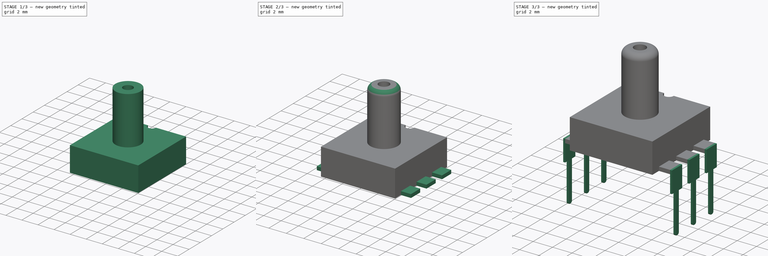
[diagram: build sequence overview — one tinted view per stage of 3, left to right]
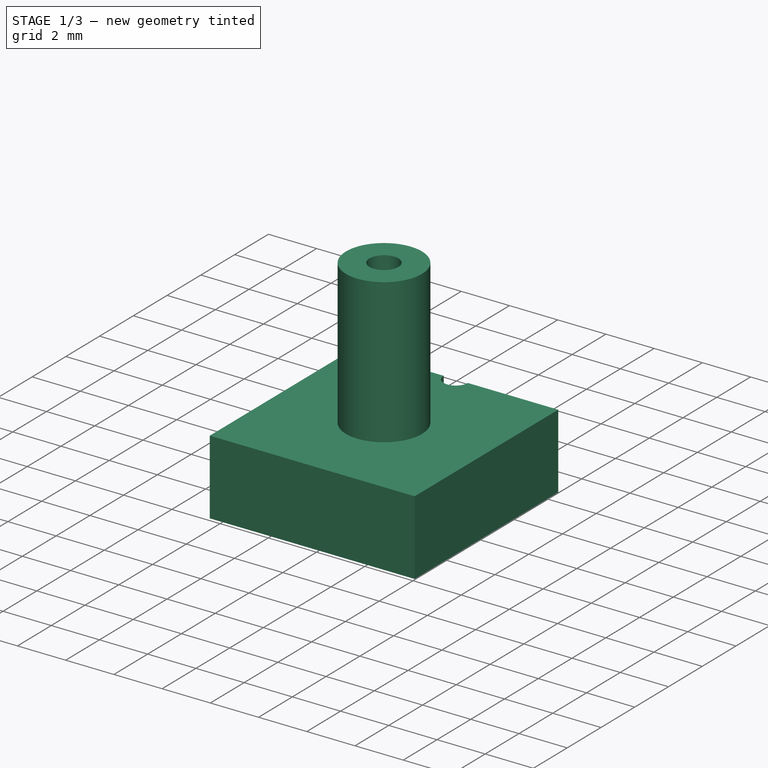
[diagram: stage 1 of 3 — iso view after this stage's code; geometry added in this stage tinted green]
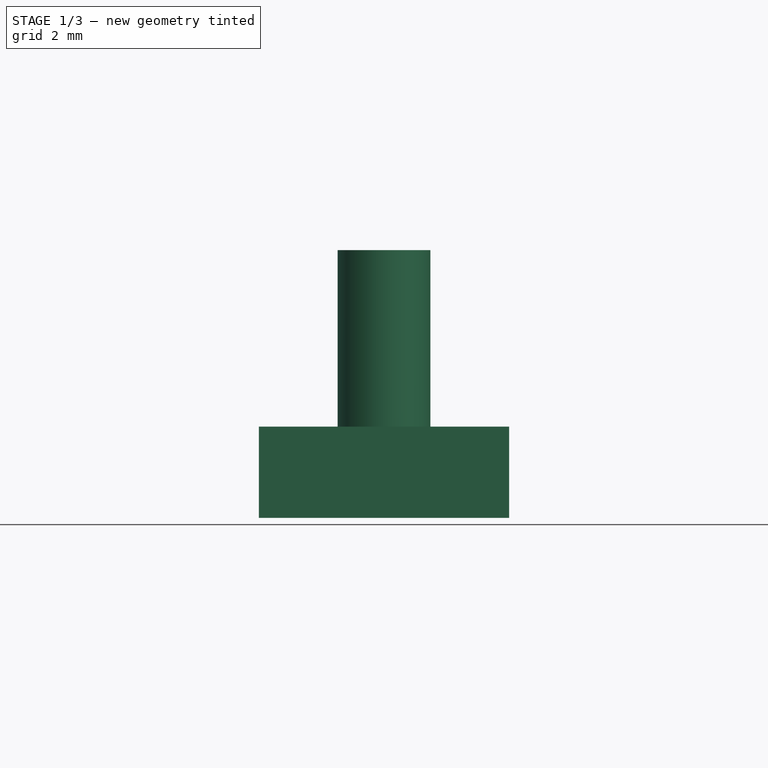
[diagram: stage 1 of 3 — front view after this stage's code; geometry added in this stage tinted green]
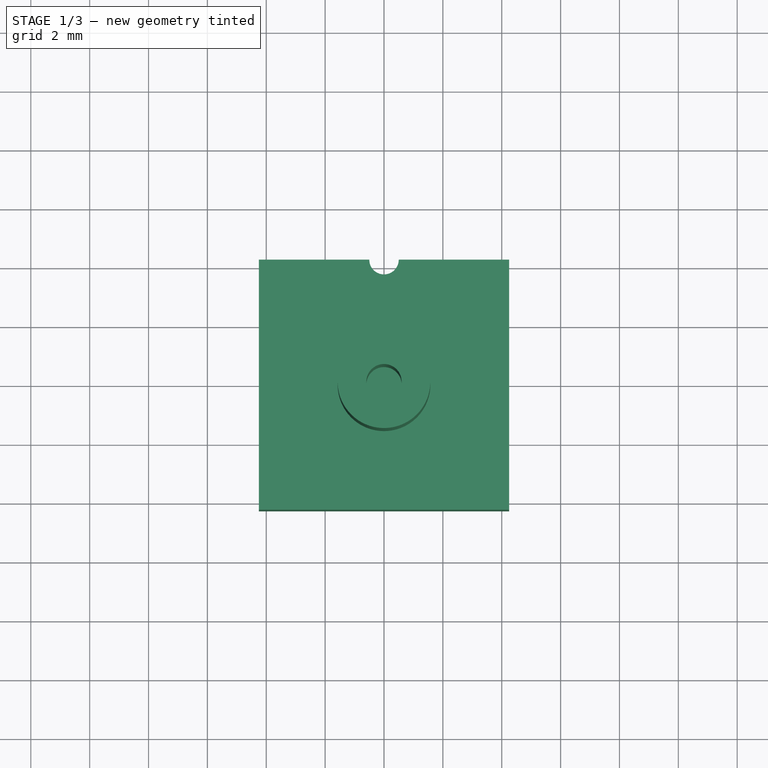
[diagram: stage 1 of 3 — top view after this stage's code; geometry added in this stage tinted green]
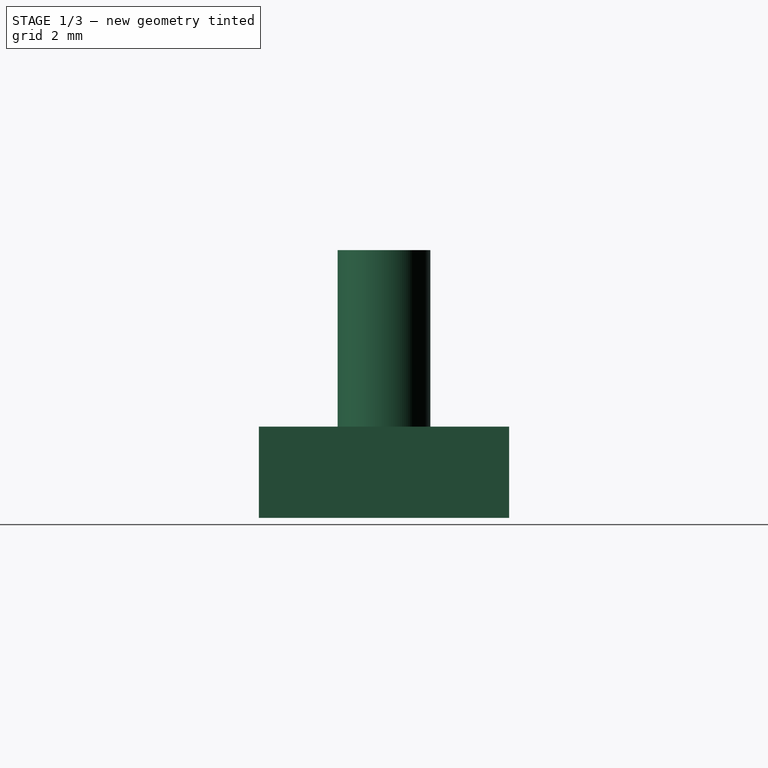
[diagram: stage 1 of 3 — right view after this stage's code; geometry added in this stage tinted green]
FCSTD DOCUMENT  (FreeCAD 0.20R29177 (Git))
Label: XGZP6857D
License: All rights reserved
LicenseURL: http://en.wikipedia.org/wiki/All_rights_reserved
objects: Sketcher::SketchObject×4, PartDesign::Pad×4, PartDesign::Body×2, PartDesign::Mirrored×1, PartDesign::Fillet×1, Part::Feature×1
note: 18 computed .brp shape members not serialized (recipe doc carries the construction recipe); baked Part::Feature solids carry a one-line shape summary decoded from their .brp

FEATURE [Sketcher::SketchObject] Sketch
  FullyConstrained = true
  MapMode = 5
  Support = -> [XY_Plane]
  sketch-geometry (6):
    g0: LineSegment StartX=-4.25 StartY=4.25 StartZ=0 EndX=-0.5 EndY=4.25 EndZ=0
    g1: LineSegment StartX=4.25 StartY=4.25 StartZ=0 EndX=4.25 EndY=-4.25 EndZ=0
    g2: LineSegment StartX=4.25 StartY=-4.25 StartZ=0 EndX=-4.25 EndY=-4.25 EndZ=0
    g3: LineSegment StartX=-4.25 StartY=-4.25 StartZ=0 EndX=-4.25 EndY=4.25 EndZ=0
    g4: ArcOfCircle CenterX=0 CenterY=4.25 CenterZ=0 NormalX=0 NormalY=0 NormalZ=1 AngleXU=0 Radius=0.5 StartAngle=3.14159 EndAngle=6.28319
    g5: LineSegment StartX=0.5 StartY=4.25 StartZ=0 EndX=4.25 EndY=4.25 EndZ=0
  constraints (18):
    c: Coincident(g5,g1)
    c: Coincident(g1,g2)
    c: Coincident(g2,g3)
    c: Coincident(g3,g0)
    c: Horizontal(g0)
    c: Horizontal(g2)
    c: Vertical(g1)
    c: Vertical(g3)
    c: Symmetric(g1,g0,g-1)
    c: DistanceX(g0,g5) = 8.5
    c: PointOnObject(g4,g0)
    c: PointOnObject(g4,g-2)
    c: Diameter(g4) = 1
    c: Coincident(g0,g4)
    c: Coincident(g5,g4)
    c: Horizontal(g5)
    c: Horizontal(g0,g4)
    c: Equal(g2,g1)
FEATURE [PartDesign::Pad] Pad
  Direction = (0,0,1)
  Length = 3.1
  Length2 = 10
  Profile = -> Sketch
  ReferenceAxis = -> Sketch [N_Axis]
  Type = 0
FEATURE [Sketcher::SketchObject] Sketch001
  FullyConstrained = true
  MapMode = 5
  Placement = pos=(0,0,3.1) rot=(0,0,1;0rad)
  Support = -> [Pad]
  sketch-geometry (2):
    g0: Circle CenterX=0 CenterY=0 CenterZ=0 NormalX=0 NormalY=0 NormalZ=1 AngleXU=0 Radius=1.575
    g1: Circle CenterX=0 CenterY=0 CenterZ=0 NormalX=0 NormalY=0 NormalZ=1 AngleXU=0 Radius=0.6
  constraints (4):
    c: Coincident(g0,g-1)
    c: Diameter(g0) = 3.15
    c: Coincident(g1,g0)
    c: Diameter(g1) = 1.2
FEATURE [PartDesign::Pad] Pad001
  BaseFeature = -> Pad
  Direction = (0,0,1)
  Length = 6
  Length2 = 10
  Profile = -> Sketch001
  ReferenceAxis = -> Sketch001 [N_Axis]
  Type = 0
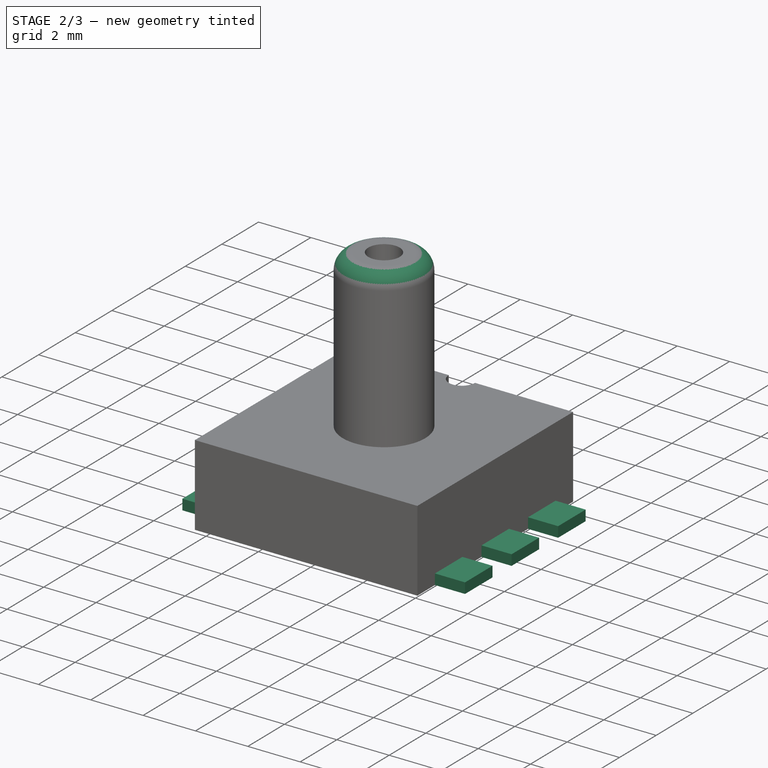
[diagram: stage 2 of 3 — iso view after this stage's code; geometry added in this stage tinted green]
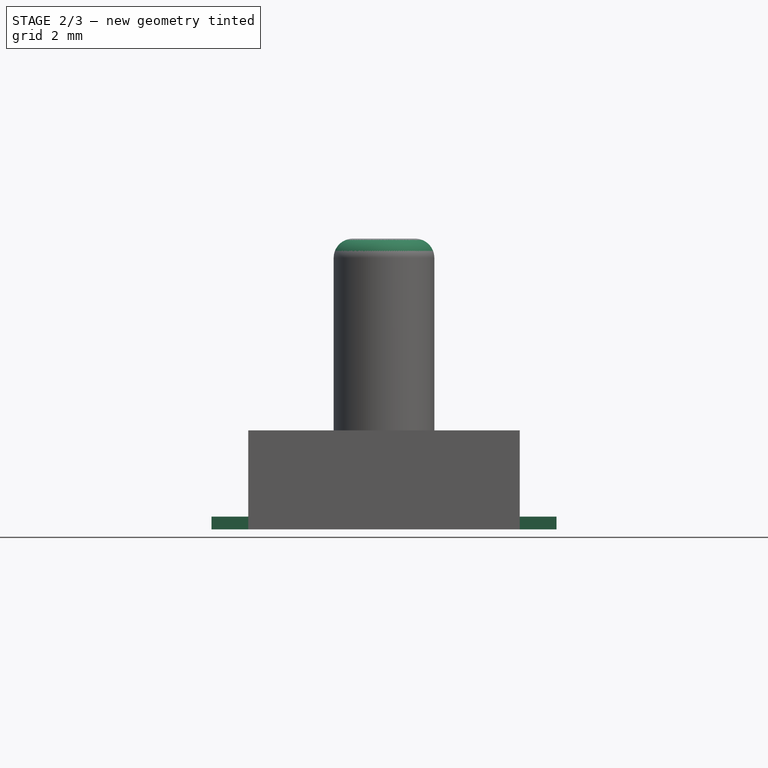
[diagram: stage 2 of 3 — front view after this stage's code; geometry added in this stage tinted green]
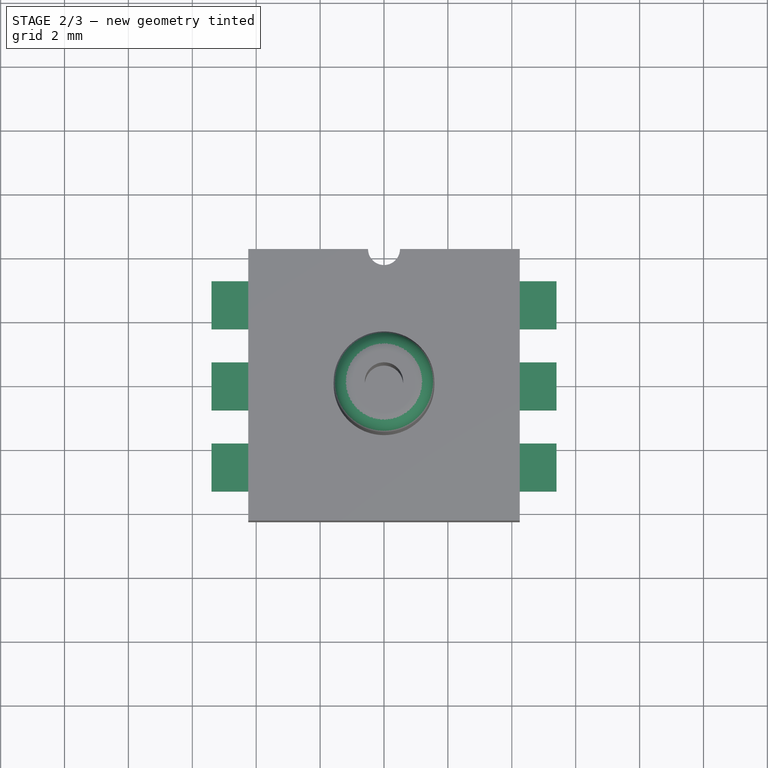
[diagram: stage 2 of 3 — top view after this stage's code; geometry added in this stage tinted green]
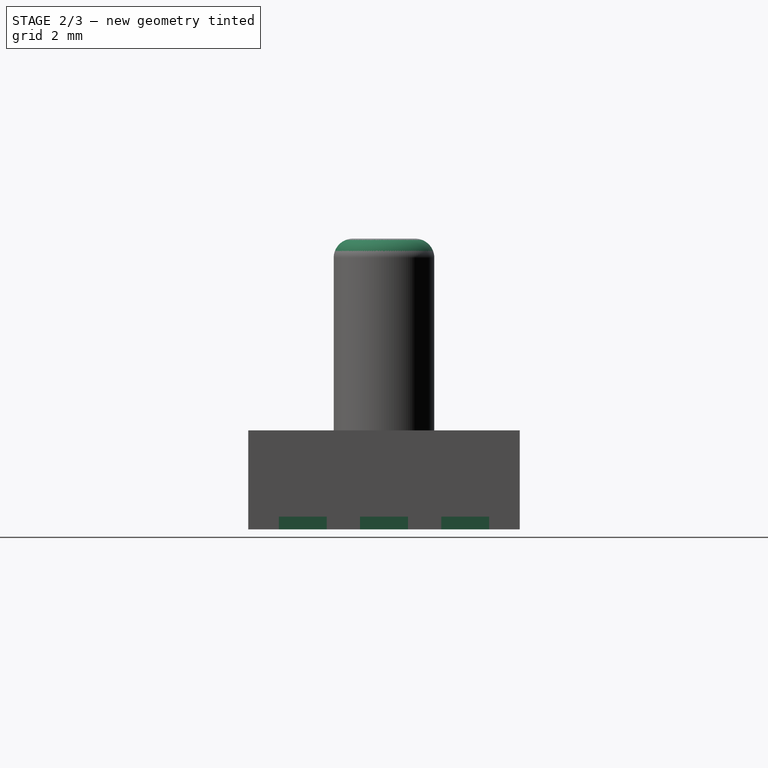
[diagram: stage 2 of 3 — right view after this stage's code; geometry added in this stage tinted green]
FEATURE [Sketcher::SketchObject] Sketch002
  FullyConstrained = true
  MapMode = 5
  Support = -> [XY_Plane001]
  sketch-geometry (30):
    g0: LineSegment StartX=-4.24 StartY=4.245 StartZ=0 EndX=-0.986451 EndY=4.245 EndZ=0
    g1: LineSegment StartX=4.24 StartY=4.245 StartZ=0 EndX=4.24 EndY=3.29 EndZ=0
    g2: LineSegment StartX=4.24 StartY=-4.245 StartZ=0 EndX=-4.24 EndY=-4.245 EndZ=0
    g3: LineSegment StartX=-4.24 StartY=-4.245 StartZ=0 EndX=-4.24 EndY=-3.29 EndZ=0
    g4: LineSegment StartX=-5.4 StartY=3.29 StartZ=0 EndX=-4.24 EndY=3.29 EndZ=0
    g5: LineSegment StartX=-4.24 StartY=1.79 StartZ=0 EndX=-5.4 EndY=1.79 EndZ=0
    g6: LineSegment StartX=-5.4 StartY=1.79 StartZ=0 EndX=-5.4 EndY=3.29 EndZ=0
    g7: LineSegment StartX=4.24 StartY=3.29 StartZ=0 EndX=5.4 EndY=3.29 EndZ=0
    g8: LineSegment StartX=5.4 StartY=3.29 StartZ=0 EndX=5.4 EndY=1.79 EndZ=0
    g9: LineSegment StartX=5.4 StartY=1.79 StartZ=0 EndX=4.24 EndY=1.79 EndZ=0
    g10: LineSegment StartX=-5.4 StartY=0.75 StartZ=0 EndX=-4.24 EndY=0.75 EndZ=0
    g11: LineSegment StartX=-4.24 StartY=-0.75 StartZ=0 EndX=-5.4 EndY=-0.75 EndZ=0
    g12: LineSegment StartX=-5.4 StartY=-0.75 StartZ=0 EndX=-5.4 EndY=0.75 EndZ=0
    g13: LineSegment StartX=4.24 StartY=0.75 StartZ=0 EndX=5.4 EndY=0.75 EndZ=0
    g14: LineSegment StartX=5.4 StartY=0.75 StartZ=0 EndX=5.4 EndY=-0.75 EndZ=0
    g15: LineSegment StartX=5.4 StartY=-0.75 StartZ=0 EndX=4.24 EndY=-0.75 EndZ=0
    g16: LineSegment StartX=-5.4 StartY=-1.79 StartZ=0 EndX=-4.24 EndY=-1.79 EndZ=0
    g17: LineSegment StartX=-4.24 StartY=-3.29 StartZ=0 EndX=-5.4 EndY=-3.29 EndZ=0
    g18: LineSegment StartX=-5.4 StartY=-3.29 StartZ=0 EndX=-5.4 EndY=-1.79 EndZ=0
    g19: LineSegment StartX=4.24 StartY=-1.79 StartZ=0 EndX=5.4 EndY=-1.79 EndZ=0
    g20: LineSegment StartX=5.4 StartY=-1.79 StartZ=0 EndX=5.4 EndY=-3.29 EndZ=0
    g21: LineSegment StartX=5.4 StartY=-3.29 StartZ=0 EndX=4.24 EndY=-3.29 EndZ=0
    g22: ArcOfCircle CenterX=0.013549 CenterY=4.245 CenterZ=0 NormalX=0 NormalY=0 NormalZ=1 AngleXU=0 Radius=1 StartAngle=3.14159 EndAngle=6.28319
    g23: LineSegment StartX=1.01355 StartY=4.245 StartZ=0 EndX=4.24 EndY=4.245 EndZ=0
    g24: LineSegment StartX=-4.24 StartY=3.29 StartZ=0 EndX=-4.24 EndY=4.245 EndZ=0
    g25: LineSegment StartX=-4.24 StartY=0.75 StartZ=0 EndX=-4.24 EndY=1.79 EndZ=0
    g26: LineSegment StartX=-4.24 StartY=-1.79 StartZ=0 EndX=-4.24 EndY=-0.75 EndZ=0
    g27: LineSegment StartX=4.24 StartY=-3.29 StartZ=0 EndX=4.24 EndY=-4.245 EndZ=0
    g28: LineSegment StartX=4.24 StartY=-0.75 StartZ=0 EndX=4.24 EndY=-1.79 EndZ=0
    g29: LineSegment StartX=4.24 StartY=1.79 StartZ=0 EndX=4.24 EndY=0.75 EndZ=0
  constraints (82):
    c: Coincident(g23,g1)
    c: Coincident(g27,g2)
    c: Coincident(g2,g3)
    c: Coincident(g24,g0)
    c: Horizontal(g0)
    c: Horizontal(g2)
    c: Vertical(g1)
    c: Vertical(g3)
    c: Symmetric(g27,g0,g-1)
    c: Coincident(g5,g6)
    c: Coincident(g6,g4)
    c: Horizontal(g4)
    c: Horizontal(g5)
    c: Vertical(g6)
    c: Coincident(g7,g8)
    c: Coincident(g8,g9)
    c: Horizontal(g7)
    c: Horizontal(g9)
    c: Symmetric(g4,g7,g-2)
    c: DistanceX(g4,g7) = 10.8
    c: Equal(g6,g8)
    c: DistanceY(g6,g6) = 1.5
    c: Coincident(g11,g12)
    c: Coincident(g12,g10)
    c: Horizontal(g10)
    c: Horizontal(g11)
    c: Coincident(g13,g14)
    c: Coincident(g14,g15)
    c: Horizontal(g13)
    c: Horizontal(g15)
    c: Coincident(g17,g18)
    c: Coincident(g18,g16)
    c: Horizontal(g16)
    c: Horizontal(g17)
    c: Vertical(g18)
    c: Coincident(g19,g20)
    c: Coincident(g20,g21)
    c: Horizontal(g19)
    c: Horizontal(g21)
    c: Vertical(g20)
    c: Vertical(g12,g5)
    c: Symmetric(g11,g10,g-1)
    c: Equal(g6,g12)
    c: Symmetric(g16,g5,g-1)
    c: Equal(g6,g18)
    c: DistanceY(g17,g4) = 6.58
    c: Equal(g8,g14)
    c: Equal(g20,g14)
    c: PointOnObject(g22,g0)
    c: Diameter(g22) = 2
    c: Coincident(g0,g22)
    c: Coincident(g23,g22)
    c: Coincident(g25,g5)
    c: Coincident(g24,g4)
    c: Coincident(g26,g11)
    c: Coincident(g25,g10)
    c: Coincident(g16,g26)
    c: Coincident(g17,g3)
    c: Coincident(g28,g19)
    c: Coincident(g21,g27)
    c: Coincident(g29,g13)
    c: Coincident(g15,g28)
    c: Coincident(g1,g7)
    c: Coincident(g29,g9)
    c: DistanceX(g4,g4) = 1.16
    c: Equal(g4,g5)
    c: Equal(g5,g10)
    c: Equal(g10,g11)
    c: Equal(g11,g16)
    c: Equal(g17,g16)
    c: DistanceY(g2,g0) = 8.49
    c: Equal(g5,g9)
    c: Equal(g9,g13)
    c: Equal(g15,g19)
    c: Equal(g19,g21)
    c: Symmetric(g9,g5,g-2)
    c: Symmetric(g13,g10,g-2)
    c: Symmetric(g15,g11,g-2)
    c: Symmetric(g19,g16,g-2)
    c: Horizontal(g23)
    c: DistanceX(g2,g2) = 8.48
    c: Symmetric(g1,g0,g-2)
FEATURE [PartDesign::Pad] Pad002
  Direction = (0,0,1)
  Length = 0.4
  Length2 = 10
  Profile = -> Sketch002
  ReferenceAxis = -> Sketch002 [N_Axis]
  Type = 0
FEATURE [PartDesign::Body] Body001  label="Pins"
  Group = -> [Sketch002,Pad002,Sketch003,Pad003,Mirrored]
  Origin = -> Origin001
  Placement = pos=(0,0,2) rot=(0,0,1;0rad)
  Tip = -> Mirrored
FEATURE [PartDesign::Fillet] Fillet
  Base = -> Pad001 [Edge21]
  BaseFeature = -> Pad001
  Radius = 0.6
  SupportTransform = false
  UseAllEdges = false
FEATURE [PartDesign::Body] Body
  Group = -> [Sketch,Pad,Sketch001,Pad001,Fillet]
  Origin = -> Origin
  Tip = -> Fillet
FEATURE [Part::Feature] Shape  label="Fusion"
  shape: bbox 11.2 x 8.5 x 13 mm, 123 faces (baked)
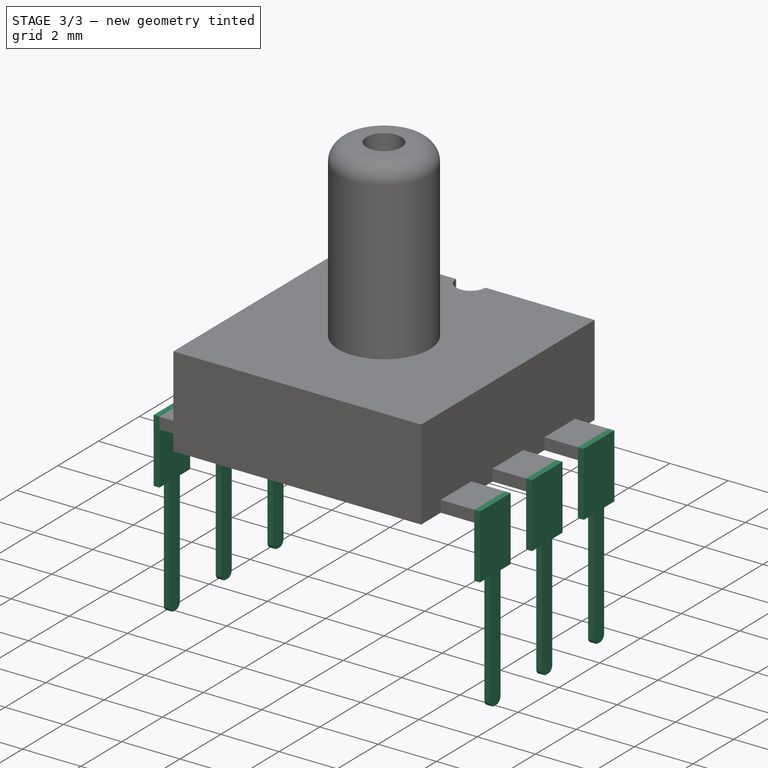
[diagram: stage 3 of 3 — iso view after this stage's code; geometry added in this stage tinted green]
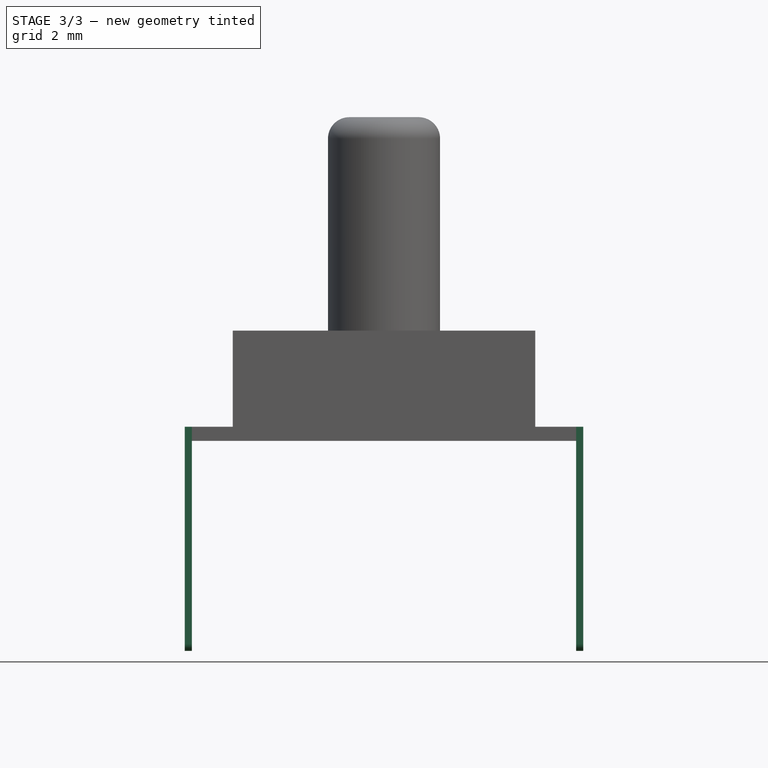
[diagram: stage 3 of 3 — front view after this stage's code; geometry added in this stage tinted green]
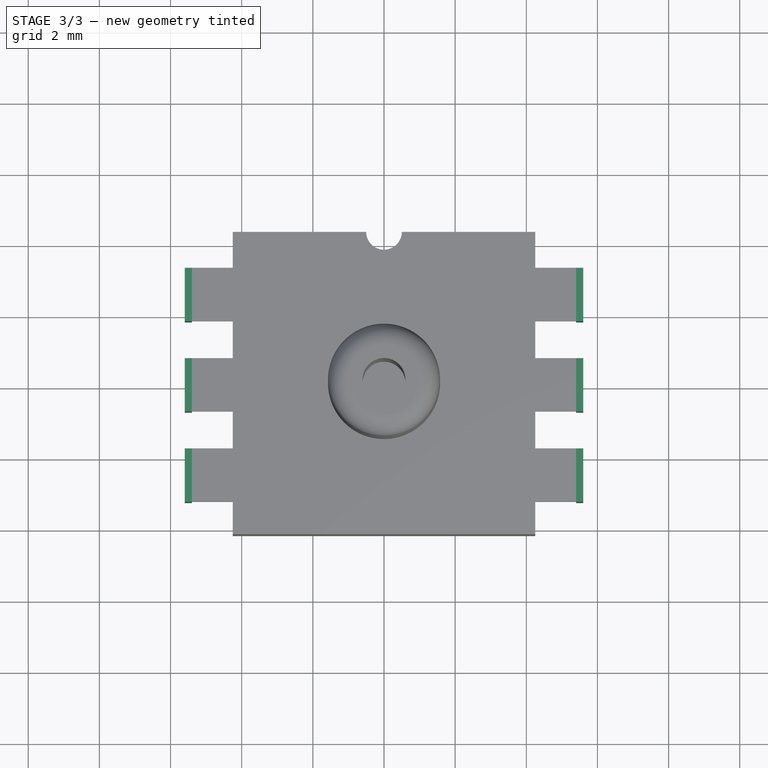
[diagram: stage 3 of 3 — top view after this stage's code; geometry added in this stage tinted green]
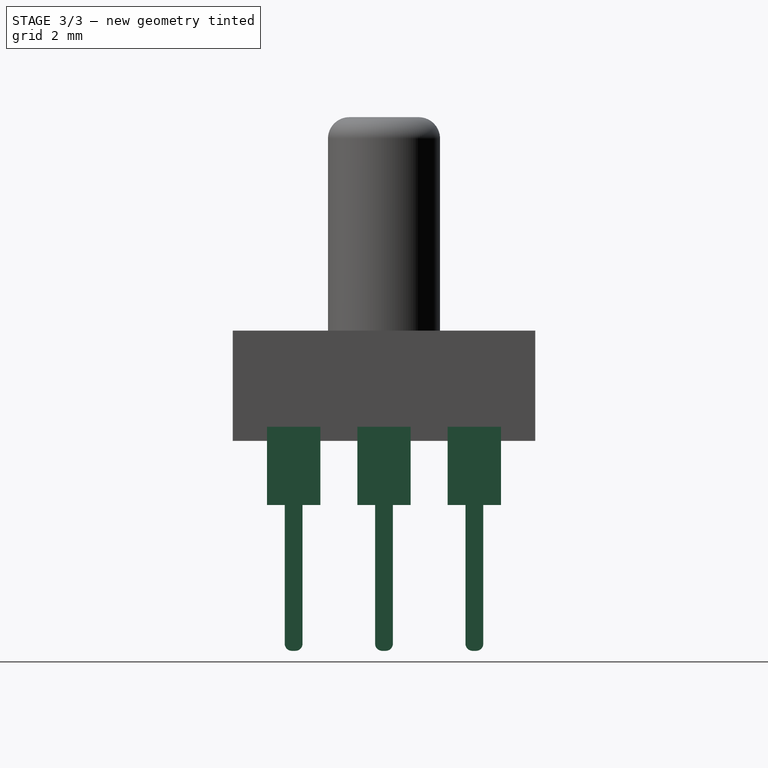
[diagram: stage 3 of 3 — right view after this stage's code; geometry added in this stage tinted green]
FEATURE [Sketcher::SketchObject] Sketch003
  FullyConstrained = true
  MapMode = 5
  Placement = pos=(5.4,0,0) rot=(0.57735,0.57735,0.57735;2.0944rad)
  Support = -> [Pad002]
  sketch-geometry (36):
    g0: LineSegment StartX=-0.75 StartY=0.4 StartZ=0 EndX=0.75 EndY=0.4 EndZ=0
    g1: LineSegment StartX=0.75 StartY=0.4 StartZ=0 EndX=0.75 EndY=-1.8 EndZ=0
    g2: LineSegment StartX=0.75 StartY=-1.8 StartZ=0 EndX=0.25 EndY=-1.8 EndZ=0
    g3: LineSegment StartX=-0.75 StartY=-1.8 StartZ=0 EndX=-0.75 EndY=0.4 EndZ=0
    g4: LineSegment StartX=-3.29 StartY=0.4 StartZ=0 EndX=-1.79 EndY=0.4 EndZ=0
    g5: LineSegment StartX=-1.79 StartY=0.4 StartZ=0 EndX=-1.79 EndY=-1.8 EndZ=0
    g6: LineSegment StartX=-1.79 StartY=-1.8 StartZ=0 EndX=-2.29 EndY=-1.8 EndZ=0
    g7: LineSegment StartX=-3.29 StartY=-1.8 StartZ=0 EndX=-3.29 EndY=0.4 EndZ=0
    g8: LineSegment StartX=1.79 StartY=0.4 StartZ=0 EndX=3.29 EndY=0.4 EndZ=0
    g9: LineSegment StartX=3.29 StartY=0.4 StartZ=0 EndX=3.29 EndY=-1.8 EndZ=0
    g10: LineSegment StartX=3.29 StartY=-1.8 StartZ=0 EndX=2.79 EndY=-1.8 EndZ=0
    g11: LineSegment StartX=1.79 StartY=-1.8 StartZ=0 EndX=1.79 EndY=0.4 EndZ=0
    g12: LineSegment StartX=0.25 StartY=-1.8 StartZ=0 EndX=0.25 EndY=-5.7 EndZ=0
    g13: LineSegment StartX=0.05 StartY=-5.9 StartZ=0 EndX=-0.05 EndY=-5.9 EndZ=0
    g14: LineSegment StartX=-0.25 StartY=-5.7 StartZ=0 EndX=-0.25 EndY=-1.8 EndZ=0
    g15: LineSegment StartX=-0.25 StartY=-1.8 StartZ=0 EndX=-0.75 EndY=-1.8 EndZ=0
    g16: LineSegment StartX=-2.29 StartY=-1.8 StartZ=0 EndX=-2.29 EndY=-5.7 EndZ=0
    g17: LineSegment StartX=-2.49 StartY=-5.9 StartZ=0 EndX=-2.59 EndY=-5.9 EndZ=0
    g18: LineSegment StartX=-2.79 StartY=-5.7 StartZ=0 EndX=-2.79 EndY=-1.8 EndZ=0
    g19: LineSegment StartX=2.79 StartY=-1.8 StartZ=0 EndX=2.79 EndY=-5.7 EndZ=0
    g20: LineSegment StartX=2.59 StartY=-5.9 StartZ=0 EndX=2.49 EndY=-5.9 EndZ=0
    g21: LineSegment StartX=2.29 StartY=-5.7 StartZ=0 EndX=2.29 EndY=-1.8 EndZ=0
    g22: LineSegment StartX=-2.79 StartY=-1.8 StartZ=0 EndX=-3.29 EndY=-1.8 EndZ=0
    g23: LineSegment StartX=2.29 StartY=-1.8 StartZ=0 EndX=1.79 EndY=-1.8 EndZ=0
    g24: ArcOfCircle CenterX=-2.59 CenterY=-5.7 CenterZ=0 NormalX=0 NormalY=0 NormalZ=1 AngleXU=0 Radius=0.2 StartAngle=3.14159 EndAngle=4.71239
    g25: GeomPoint X=-2.79 Y=-5.9 Z=0
    g26: ArcOfCircle CenterX=-2.49 CenterY=-5.7 CenterZ=0 NormalX=0 NormalY=0 NormalZ=1 AngleXU=0 Radius=0.2 StartAngle=4.71239 EndAngle=6.28319
    g27: GeomPoint X=-2.29 Y=-5.9 Z=0
    g28: ArcOfCircle CenterX=-0.05 CenterY=-5.7 CenterZ=0 NormalX=0 NormalY=0 NormalZ=1 AngleXU=0 Radius=0.2 StartAngle=3.14159 EndAngle=4.71239
    g29: GeomPoint X=-0.25 Y=-5.9 Z=0
    g30: ArcOfCircle CenterX=0.05 CenterY=-5.7 CenterZ=0 NormalX=0 NormalY=0 NormalZ=1 AngleXU=0 Radius=0.2 StartAngle=4.71239 EndAngle=6.28319
    g31: GeomPoint X=0.25 Y=-5.9 Z=0
    g32: ArcOfCircle CenterX=2.49 CenterY=-5.7 CenterZ=0 NormalX=0 NormalY=0 NormalZ=1 AngleXU=0 Radius=0.2 StartAngle=3.14159 EndAngle=4.71239
    g33: GeomPoint X=2.29 Y=-5.9 Z=0
    g34: ArcOfCircle CenterX=2.59 CenterY=-5.7 CenterZ=0 NormalX=0 NormalY=0 NormalZ=1 AngleXU=0 Radius=0.2 StartAngle=4.71239 EndAngle=6.28319
    g35: GeomPoint X=2.79 Y=-5.9 Z=0
  constraints (93):
    c: Coincident(g0,g1)
    c: Coincident(g1,g2)
    c: Coincident(g15,g3)
    c: Coincident(g3,g0)
    c: Horizontal(g2)
    c: Vertical(g1)
    c: Vertical(g3)
    c: DistanceY(g1,g1) = 2.2
    c: Symmetric(g0,g0,g-2)
    c: DistanceY(g-1,g0) = 0.4
    c: DistanceX(g0,g0) = 1.5
    c: Coincident(g4,g5)
    c: Coincident(g5,g6)
    c: Coincident(g22,g7)
    c: Coincident(g7,g4)
    c: Horizontal(g4)
    c: Horizontal(g6)
    c: Vertical(g5)
    c: Vertical(g7)
    c: Coincident(g8,g9)
    c: Coincident(g9,g10)
    c: Coincident(g23,g11)
    c: Coincident(g11,g8)
    c: Horizontal(g8)
    c: Horizontal(g10)
    c: Vertical(g9)
    c: Vertical(g11)
    c: Symmetric(g4,g8,g-2)
    c: Equal(g4,g0)
    c: Equal(g0,g8)
    c: Equal(g9,g1)
    c: Equal(g5,g3)
    c: DistanceX(g4,g8) = 6.58
    c: Horizontal(g4,g0)
    c: Vertical(g12)
    c: Vertical(g14)
    c: Symmetric(g31,g29,g-2)
    c: DistanceY(g31,g0) = 6.3
    c: DistanceX(g29,g31) = 0.5
    c: Equal(g15,g2)
    c: Horizontal(g15)
    c: Equal(g1,g3)
    c: Coincident(g15,g14)
    c: Horizontal(g17)
    c: Vertical(g16)
    c: Vertical(g18)
    c: Horizontal(g20)
    c: Vertical(g19)
    c: Vertical(g21)
    c: Coincident(g18,g22)
    c: Coincident(g6,g16)
    c: Coincident(g21,g23)
    c: Coincident(g10,g19)
    c: Equal(g15,g6)
    c: Equal(g22,g6)
    c: Equal(g2,g23)
    c: Equal(g10,g23)
    c: Equal(g11,g1)
    c: Equal(g7,g5)
    c: Horizontal(g22)
    c: PointOnObject(g25,g17)
    c: PointOnObject(g25,g18)
    c: Tangent(g17,g24) = 1.5708
    c: Tangent(g18,g24) = 1.5708
    c: PointOnObject(g27,g16)
    c: PointOnObject(g27,g17)
    c: Tangent(g16,g26) = 1.5708
    c: Tangent(g17,g26) = 1.5708
    c: PointOnObject(g29,g13)
    c: PointOnObject(g29,g14)
    c: Tangent(g13,g28) = 1.5708
    c: Tangent(g14,g28) = 1.5708
    c: PointOnObject(g31,g13)
    c: Tangent(g12,g30) = 1.5708
    c: Tangent(g13,g30) = 1.5708
    c: PointOnObject(g33,g20)
    c: PointOnObject(g33,g21)
    c: Tangent(g20,g32) = 1.5708
    c: Tangent(g21,g32) = 1.5708
    c: PointOnObject(g35,g19)
    c: PointOnObject(g35,g20)
    c: Tangent(g19,g34) = 1.5708
    c: Tangent(g20,g34) = 1.5708
    c: Equal(g16,g14)
    c: Equal(g12,g14)
    c: Coincident(g2,g12)
    c: Diameter(g28) = 0.4
    c: Equal(g16,g18)
    c: Equal(g26,g28)
    c: Equal(g30,g32)
    c: Equal(g32,g34)
    c: Equal(g21,g12)
    c: Equal(g21,g19)
FEATURE [PartDesign::Pad] Pad003
  BaseFeature = -> Pad002
  Direction = (1,0,0)
  Length = 0.2
  Length2 = 10
  Profile = -> Sketch003
  ReferenceAxis = -> Sketch003 [N_Axis]
  Type = 0
FEATURE [PartDesign::Mirrored] Mirrored
  BaseFeature = -> Pad003
  MirrorPlane = -> YZ_Plane001
  Originals = -> [Pad003]
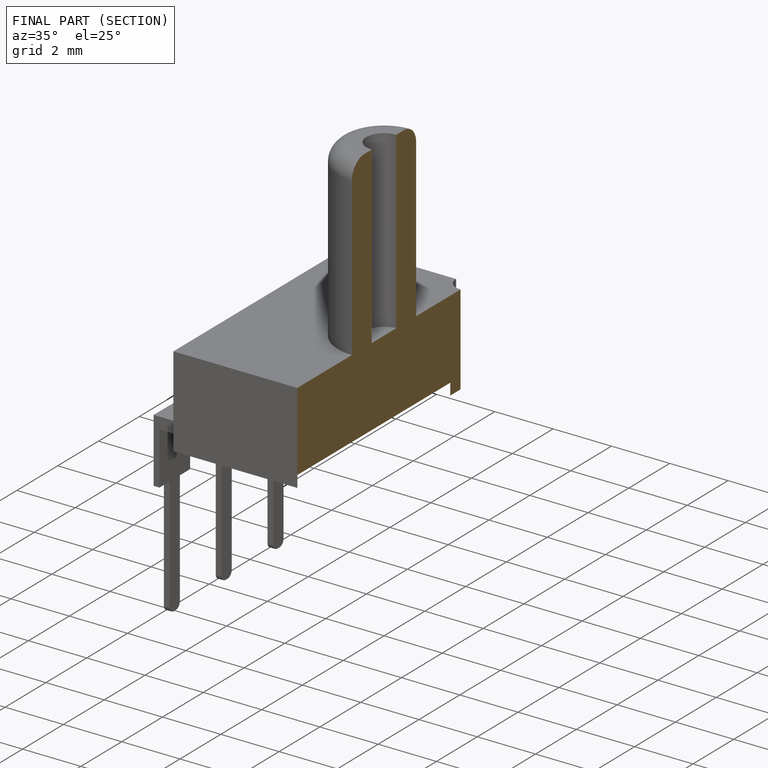
[diagram: finished part — half-section view (interior)]
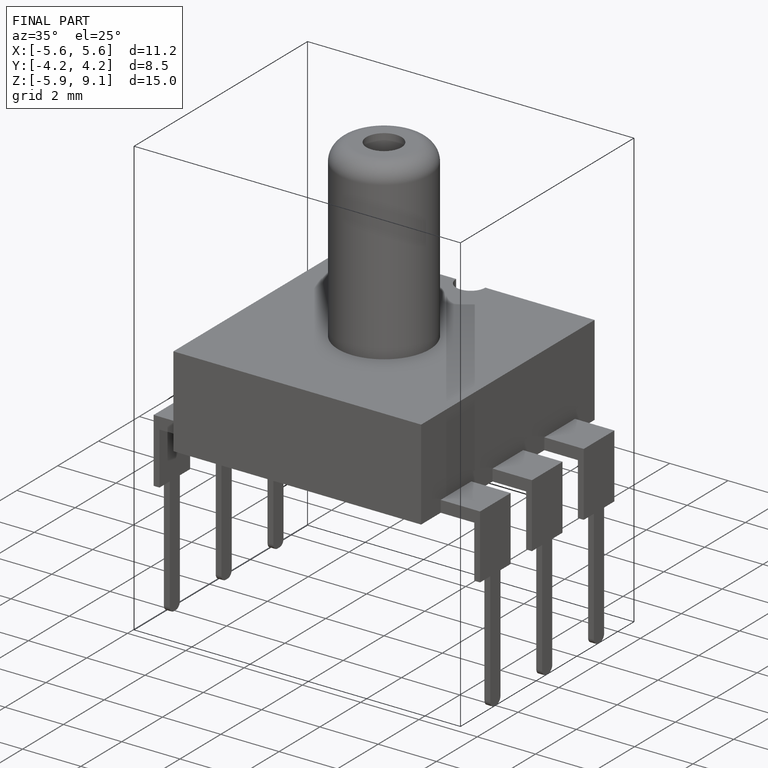
[diagram: finished part — iso view with bounding-box wireframe]
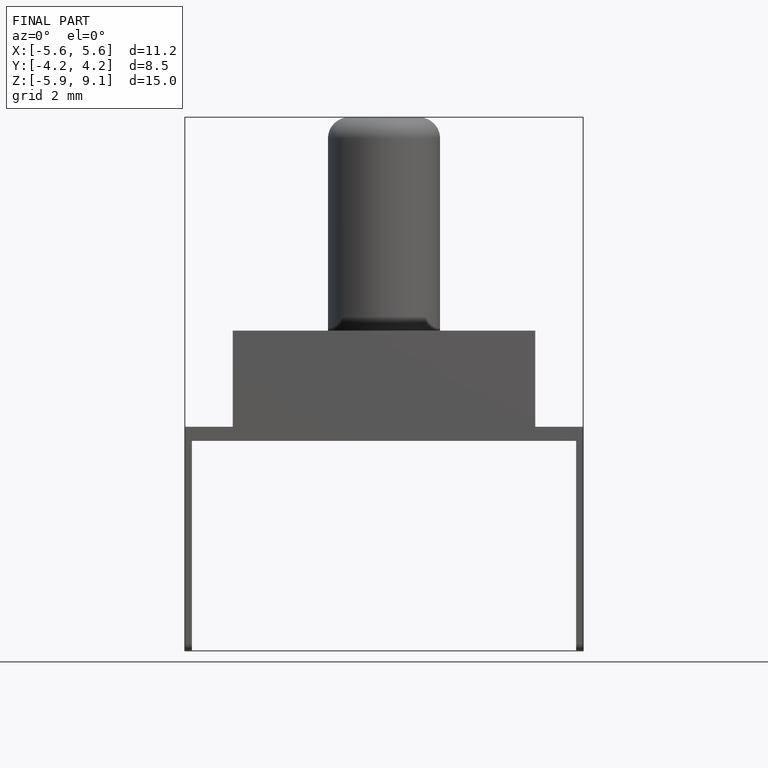
[diagram: finished part — front view with bounding-box wireframe]
